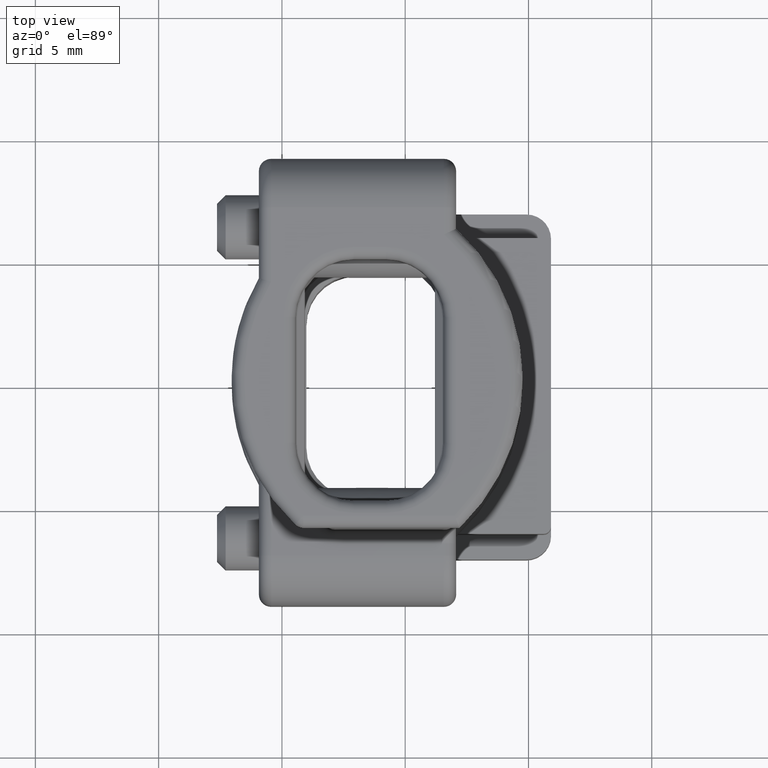
[diagram: clean part render]
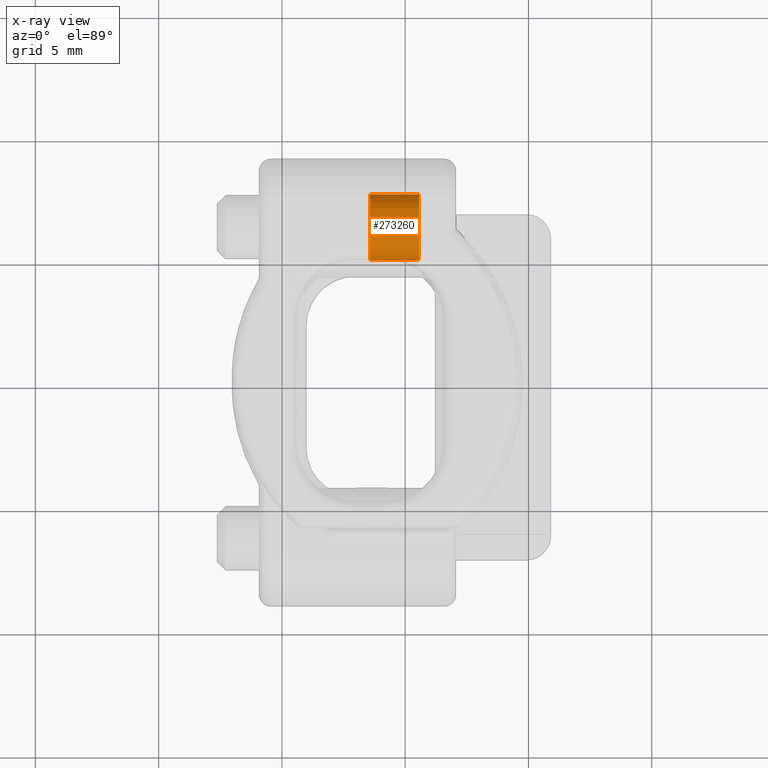
[diagram: x-ray — body ghosted, one internal face saturated and labeled with its STEP entity id]
A machine part, top view, then the same camera in x-ray: the body is ghosted and one INTERNAL B-rep face — a face not visible from any outside direction — is saturated and labeled: STEP entity #273260.
In plain terms, the highlighted cylindrical surface (edge-blend (fillet) strip) has radius 1.325 mm, axis along (-1, 0, 0).
Its self-contained STEP definition (entity closure, byte-faithful):
#272760=CARTESIAN_POINT('',(31.4744043245911,-42.7911187952982,
-1.46774899736045));
#272770=DIRECTION('',(-2.98367354015269E-16,1.,0.));
#272780=DIRECTION('',(1.,2.98367354015269E-16,0.));
#272790=AXIS2_PLACEMENT_3D('',#272760,#272770,#272780);
#272800=CIRCLE('',#272790,1.325);
#272810=CARTESIAN_POINT('',(30.1494043245911,-42.7911187952982,
-1.46774899736045));
#272820=VERTEX_POINT('',#272810);
#272850=CARTESIAN_POINT('',(32.7994043245911,-42.7911187952982,
-1.46774899736045));
#272860=VERTEX_POINT('',#272850);
#272870=EDGE_CURVE('',#272860,#272820,#272800,.T.);
#272950=CARTESIAN_POINT('',(31.4744043245911,-42.7911187952982,
-1.46774899736045));
#272960=DIRECTION('',(2.98367354015269E-16,-1.,0.));
#272970=DIRECTION('',(1.,2.98367354015269E-16,0.));
#272980=AXIS2_PLACEMENT_3D('',#272950,#272960,#272970);
#272990=CYLINDRICAL_SURFACE('',#272980,1.325);
#273000=CARTESIAN_POINT('',(32.7994043245911,-42.7911187952982,
-1.46774899736045));
#273010=DIRECTION('',(2.98367354015269E-16,-1.,0.));
#273020=VECTOR('',#273010,1.);
#273030=LINE('',#273000,#273020);
#273040=CARTESIAN_POINT('',(32.7994043245911,-40.7911191785686,
-1.46774899736045));
#273050=VERTEX_POINT('',#273040);
#273060=EDGE_CURVE('',#273050,#272860,#273030,.T.);
#273070=ORIENTED_EDGE('',*,*,#273060,.F.);
#273080=ORIENTED_EDGE('',*,*,#272870,.F.);
#273090=CARTESIAN_POINT('',(30.1494043245911,-42.7911187952982,
-1.46774899736045));
#273100=DIRECTION('',(2.98367354015269E-16,-1.,0.));
#273110=VECTOR('',#273100,1.);
#273120=LINE('',#273090,#273110);
#273130=CARTESIAN_POINT('',(30.1494043245911,-40.7911191785686,
-1.46774899736045));
#273140=VERTEX_POINT('',#273130);
#273150=EDGE_CURVE('',#273140,#272820,#273120,.T.);
#273160=ORIENTED_EDGE('',*,*,#273150,.T.);
#273170=CARTESIAN_POINT('',(31.4744043245911,-40.7911191785686,
-1.46774899736045));
#273180=DIRECTION('',(-1.49183677007635E-16,1.,0.));
#273190=DIRECTION('',(1.,1.49183677007635E-16,0.));
#273200=AXIS2_PLACEMENT_3D('',#273170,#273180,#273190);
#273210=CIRCLE('',#273200,1.325);
#273220=EDGE_CURVE('',#273050,#273140,#273210,.T.);
#273230=ORIENTED_EDGE('',*,*,#273220,.T.);
#273240=EDGE_LOOP('',(#273230,#273160,#273080,#273070));
#273250=FACE_OUTER_BOUND('',#273240,.T.);
#273260=ADVANCED_FACE('',(#273250),#272990,.F.);